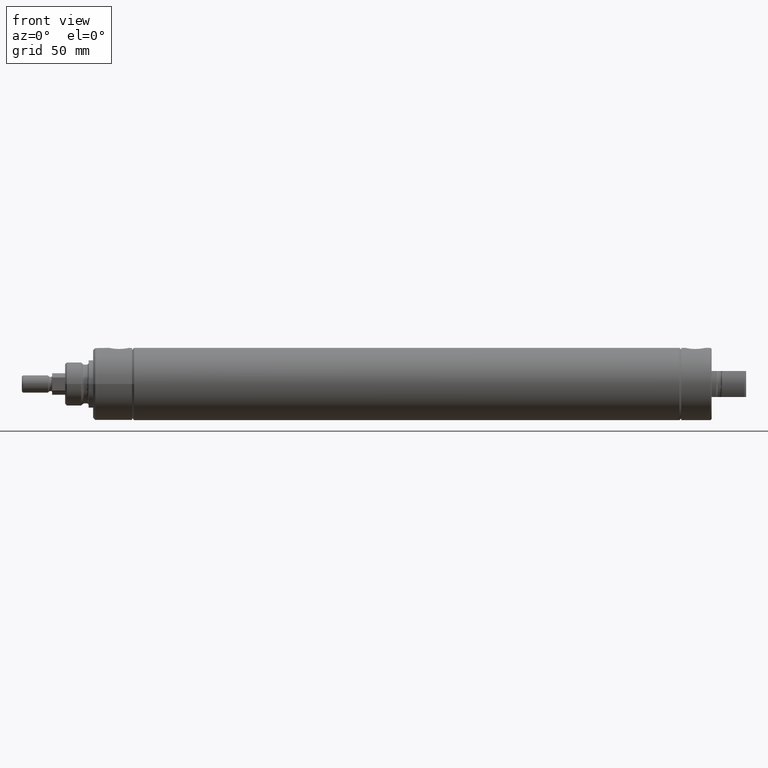
[diagram: clean part render]
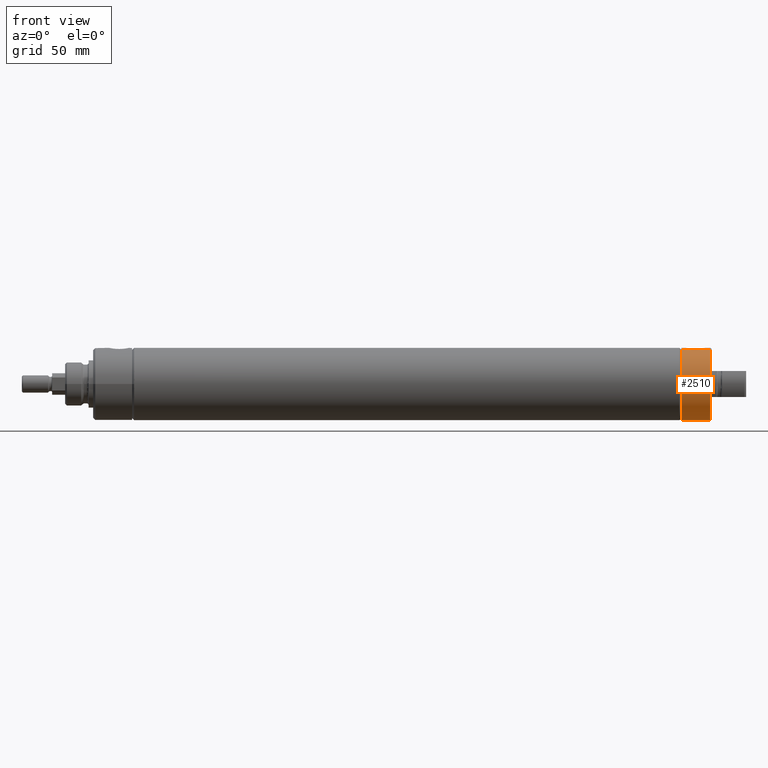
[diagram: same view with one face highlighted and labeled with its STEP entity id]
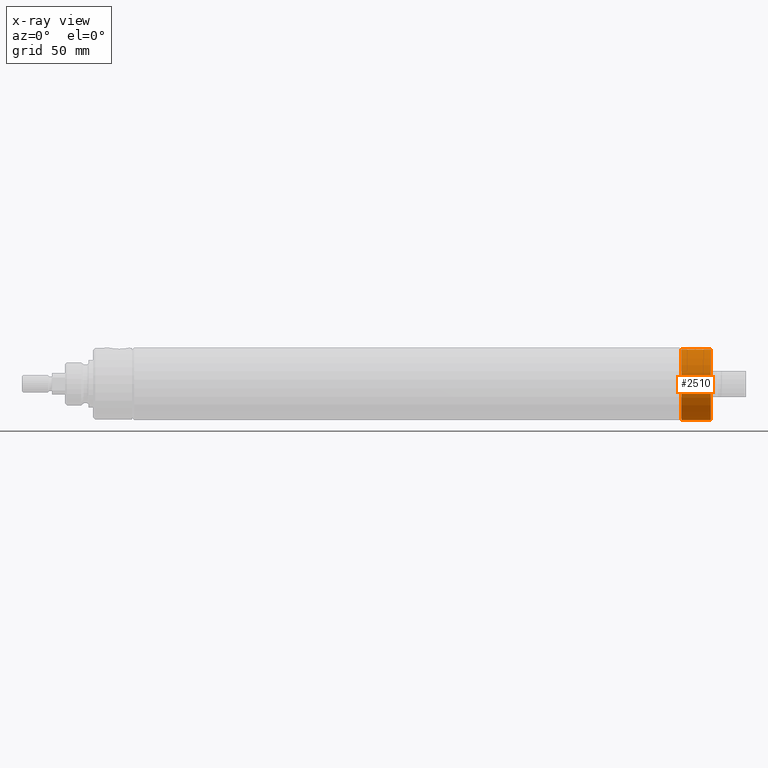
[diagram: x-ray of the same camera — body ghosted, the highlighted face saturated]
A machine part, front view. The second image highlights one B-rep face of the part: STEP entity #2510.
The next image is the same camera in x-ray: the body ghosted, the highlighted face saturated — about 0% of this face is hidden behind the body in this view.
In plain terms, the highlighted cylindrical surface (edge-blend (fillet) strip) has radius 26.543 mm, axis along (1, 0, 0).
Its self-contained STEP definition (entity closure, byte-faithful):
#218 = DIRECTION ( 'NONE',  ( 1.000000000000000000, 0.000000000000000000, -0.000000000000000000 ) ) ;
#254 = EDGE_CURVE ( 'NONE', #2787, #4455, #1434, .T. ) ;
#343 = VECTOR ( 'NONE', #5334, 1000.000000000000000 ) ;
#544 = CARTESIAN_POINT ( 'NONE',  ( 7.950199999999999712, 0.000000000000000000, -26.54299999999999926 ) ) ;
#677 = LINE ( 'NONE', #2781, #2301 ) ;
#704 = FACE_OUTER_BOUND ( 'NONE', #3577, .T. ) ;
#1005 = CARTESIAN_POINT ( 'NONE',  ( 29.46399999999999864, -8.202238081694225968, 25.24389311202226338 ) ) ;
#1029 = DIRECTION ( 'NONE',  ( 0.000000000000000000, 0.9876883405951377704, 0.1564344650402308134 ) ) ;
#1062 = CARTESIAN_POINT ( 'NONE',  ( 30.22599999999999909, 0.000000000000000000, 0.000000000000000000 ) ) ;
#1078 = DIRECTION ( 'NONE',  ( 0.000000000000000000, 0.000000000000000000, -1.000000000000000000 ) ) ;
#1179 = DIRECTION ( 'NONE',  ( 0.000000000000000000, 0.000000000000000000, -1.000000000000000000 ) ) ;
#1434 = LINE ( 'NONE', #3546, #343 ) ;
#1568 = CARTESIAN_POINT ( 'NONE',  ( 7.950199999999999712, 0.000000000000000000, 0.000000000000000000 ) ) ;
#1659 = AXIS2_PLACEMENT_3D ( 'NONE', #1062, #218, #1029 ) ;
#1670 = AXIS2_PLACEMENT_3D ( 'NONE', #3609, #4897, #1078 ) ;
#1836 = ORIENTED_EDGE ( 'NONE', *, *, #5487, .T. ) ;
#1854 = CIRCLE ( 'NONE', #2735, 26.54299999999999926 ) ;
#1857 = CARTESIAN_POINT ( 'NONE',  ( 7.950199999999999712, -8.202238081694225968, 25.24389311202226338 ) ) ;
#2301 = VECTOR ( 'NONE', #4075, 1000.000000000000000 ) ;
#2488 = ORIENTED_EDGE ( 'NONE', *, *, #4527, .F. ) ;
#2510 = ADVANCED_FACE ( 'NONE', ( #704 ), #4880, .T. ) ;
#2647 = ORIENTED_EDGE ( 'NONE', *, *, #254, .T. ) ;
#2735 = AXIS2_PLACEMENT_3D ( 'NONE', #1568, #3260, #1179 ) ;
#2781 = CARTESIAN_POINT ( 'NONE',  ( 7.950199999999999712, -8.202238081694225968, 25.24389311202226338 ) ) ;
#2787 = VERTEX_POINT ( 'NONE', #544 ) ;
#2905 = VERTEX_POINT ( 'NONE', #1005 ) ;
#3164 = ORIENTED_EDGE ( 'NONE', *, *, #5451, .F. ) ;
#3260 = DIRECTION ( 'NONE',  ( 1.000000000000000000, 0.000000000000000000, 0.000000000000000000 ) ) ;
#3546 = CARTESIAN_POINT ( 'NONE',  ( 7.950199999999999712, 0.000000000000000000, -26.54299999999999926 ) ) ;
#3577 = EDGE_LOOP ( 'NONE', ( #3164, #1836, #2647, #2488 ) ) ;
#3609 = CARTESIAN_POINT ( 'NONE',  ( 29.46400000000000219, 0.000000000000000000, 0.000000000000000000 ) ) ;
#4075 = DIRECTION ( 'NONE',  ( 1.000000000000000000, 0.000000000000000000, 0.000000000000000000 ) ) ;
#4091 = CARTESIAN_POINT ( 'NONE',  ( 29.46400000000000219, 0.000000000000000000, -26.54299999999999926 ) ) ;
#4451 = VERTEX_POINT ( 'NONE', #1857 ) ;
#4455 = VERTEX_POINT ( 'NONE', #4091 ) ;
#4527 = EDGE_CURVE ( 'NONE', #2905, #4455, #4691, .T. ) ;
#4691 = CIRCLE ( 'NONE', #1670, 26.54299999999999926 ) ;
#4880 = CYLINDRICAL_SURFACE ( 'NONE', #1659, 26.54300000000000281 ) ;
#4897 = DIRECTION ( 'NONE',  ( 1.000000000000000000, 0.000000000000000000, 0.000000000000000000 ) ) ;
#5334 = DIRECTION ( 'NONE',  ( 1.000000000000000000, 0.000000000000000000, 0.000000000000000000 ) ) ;
#5451 = EDGE_CURVE ( 'NONE', #4451, #2905, #677, .T. ) ;
#5487 = EDGE_CURVE ( 'NONE', #4451, #2787, #1854, .T. ) ;